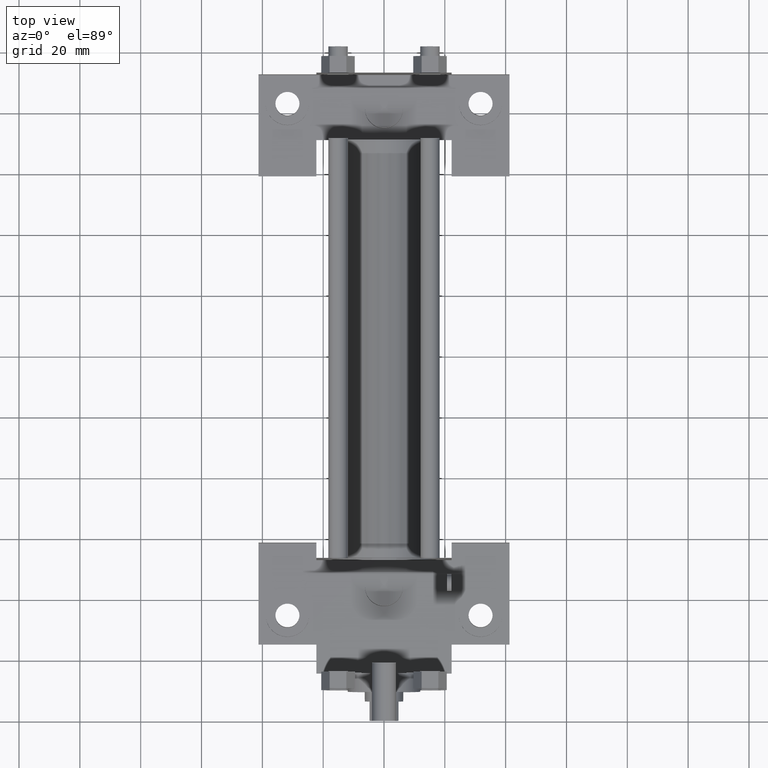
[diagram: clean part render]
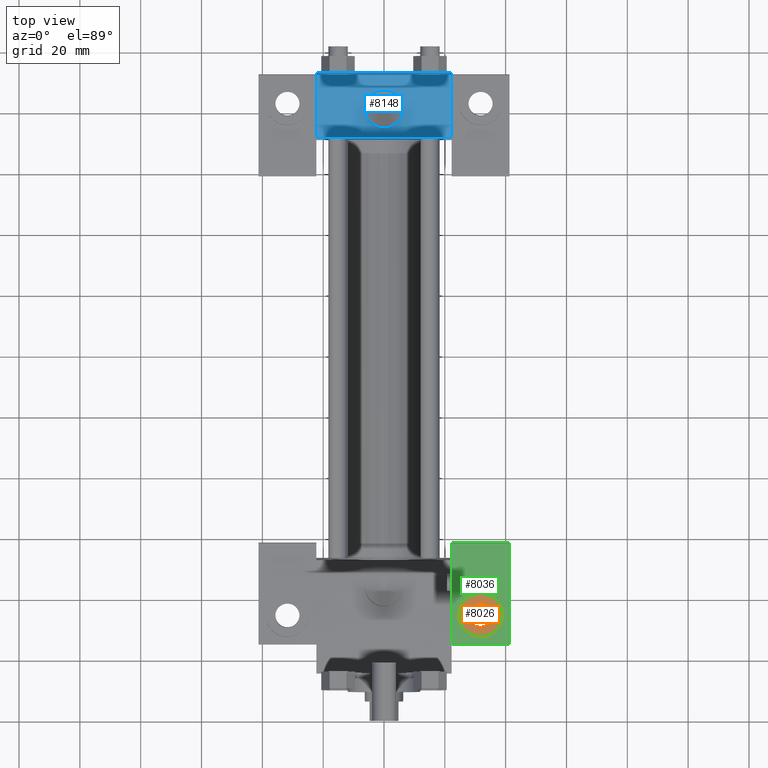
[diagram: same view with three faces highlighted in distinct colors, each labeled with its STEP entity id]
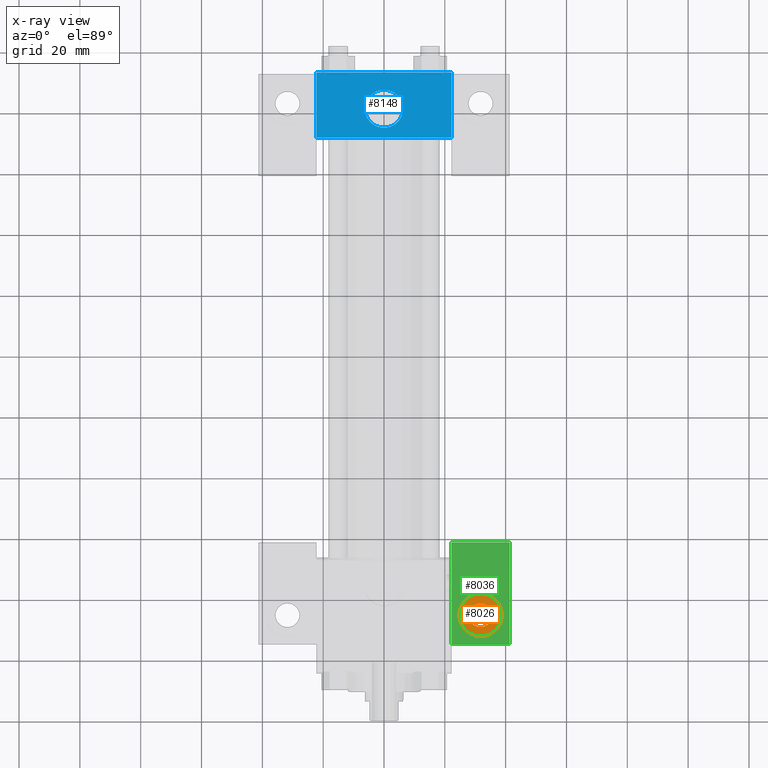
[diagram: x-ray of the same camera — body ghosted, the three highlighted faces saturated]
A machine part, top view with three faces highlighted in distinct colors.
The next image is the same camera in x-ray (body ghosted, the three faces saturated) — at least one of them is partly hidden behind the body in this view.
Their STEP definitions:

[orange] entity #8026 — the highlighted planar face has unit normal (0, 0, -1).
#1408=EDGE_CURVE('',#1414,#1414,#1409,.T.);
#1409=CIRCLE('',#1410,7.143750000E+000);
#1410=AXIS2_PLACEMENT_3D('',#1411,#1412,#1413);
#1411=CARTESIAN_POINT('',(3.175000000E+001,3.492500000E+001,-1.270000000E+001));
#1412=DIRECTION('',(0.0E+000,0.0E+000,1.0E+000));
#1413=DIRECTION('',(0.0E+000,-1.0E+000,0.0E+000));
#1414=VERTEX_POINT('',#1415);
#1415=CARTESIAN_POINT('',(3.175000000E+001,2.778125000E+001,-1.270000000E+001));
#1430=FACE_OUTER_BOUND('',#1432,.T.);
#1431=FACE_BOUND('',#1433,.T.);
#1432=EDGE_LOOP('',(#1434));
#1433=EDGE_LOOP('',(#1435));
#1434=ORIENTED_EDGE('',*,*,#1408,.T.);
#1435=ORIENTED_EDGE('',*,*,#1436,.F.);
#1436=EDGE_CURVE('',#1442,#1442,#1437,.F.);
#1437=CIRCLE('',#1438,3.968750000E+000);
#1438=AXIS2_PLACEMENT_3D('',#1439,#1440,#1441);
#1439=CARTESIAN_POINT('',(3.175000000E+001,3.492500000E+001,-1.270000000E+001));
#1440=DIRECTION('',(0.0E+000,0.0E+000,-1.0E+000));
#1441=DIRECTION('',(-1.0E+000,0.0E+000,0.0E+000));
#1442=VERTEX_POINT('',#1443);
#1443=CARTESIAN_POINT('',(2.778125000E+001,3.492500000E+001,-1.270000000E+001));
#1444=PLANE('',#1445);
#1445=AXIS2_PLACEMENT_3D('',#1446,#1447,#1448);
#1446=CARTESIAN_POINT('',(3.175000000E+001,3.492500000E+001,-1.270000000E+001));
#1447=DIRECTION('',(0.0E+000,0.0E+000,-1.0E+000));
#1448=DIRECTION('',(-1.0E+000,0.0E+000,0.0E+000));
#8026=ADVANCED_FACE('',(#1430,#1431),#1444,.F.);

[blue] entity #8148 — the highlighted planar face has unit normal (0, 0, 1).
#5134=EDGE_CURVE('',#5140,#5140,#5135,.T.);
#5135=CIRCLE('',#5136,6.243320000E+000);
#5136=AXIS2_PLACEMENT_3D('',#5137,#5138,#5139);
#5137=CARTESIAN_POINT('',(0.000000000E+000,2.008187500E+002,2.222500000E+001));
#5138=DIRECTION('',(0.0E+000,0.0E+000,-1.0E+000));
#5139=DIRECTION('',(-1.0E+000,0.0E+000,0.0E+000));
#5140=VERTEX_POINT('',#5141);
#5141=CARTESIAN_POINT('',(-6.243320000E+000,2.008187500E+002,2.222500000E+001));
#5606=VERTEX_POINT('',#5607);
#5607=CARTESIAN_POINT('',(-2.222500000E+001,2.127250000E+002,2.222500000E+001));
#5608=EDGE_CURVE('',#5613,#5606,#5609,.T.);
#5609=LINE('',#5610,#5611);
#5610=CARTESIAN_POINT('',(2.222500000E+001,2.127250000E+002,2.222500000E+001));
#5611=VECTOR('',#5612,1.0E+000);
#5612=DIRECTION('',(-1.0E+000,0.0E+000,0.0E+000));
#5613=VERTEX_POINT('',#5614);
#5614=CARTESIAN_POINT('',(2.222500000E+001,2.127250000E+002,2.222500000E+001));
#5625=FACE_OUTER_BOUND('',#5627,.T.);
#5626=FACE_BOUND('',#5628,.T.);
#5627=EDGE_LOOP('',(#5629));
#5628=EDGE_LOOP('',(#5630,#5631,#5632,#5633));
#5629=ORIENTED_EDGE('',*,*,#5134,.T.);
#5630=ORIENTED_EDGE('',*,*,#5634,.T.);
#5631=ORIENTED_EDGE('',*,*,#5641,.F.);
#5632=ORIENTED_EDGE('',*,*,#5648,.F.);
#5633=ORIENTED_EDGE('',*,*,#5608,.T.);
#5634=EDGE_CURVE('',#5606,#5639,#5635,.T.);
#5635=LINE('',#5636,#5637);
#5636=CARTESIAN_POINT('',(-2.222500000E+001,2.127250000E+002,2.222500000E+001));
#5637=VECTOR('',#5638,1.0E+000);
#5638=DIRECTION('',(0.0E+000,-1.0E+000,0.0E+000));
#5639=VERTEX_POINT('',#5640);
#5640=CARTESIAN_POINT('',(-2.222500000E+001,1.912937500E+002,2.222500000E+001));
#5641=EDGE_CURVE('',#5646,#5639,#5642,.T.);
#5642=LINE('',#5643,#5644);
#5643=CARTESIAN_POINT('',(2.222500000E+001,1.912937500E+002,2.222500000E+001));
#5644=VECTOR('',#5645,1.0E+000);
#5645=DIRECTION('',(-1.0E+000,0.0E+000,0.0E+000));
#5646=VERTEX_POINT('',#5647);
#5647=CARTESIAN_POINT('',(2.222500000E+001,1.912937500E+002,2.222500000E+001));
#5648=EDGE_CURVE('',#5613,#5646,#5649,.T.);
#5649=LINE('',#5650,#5651);
#5650=CARTESIAN_POINT('',(2.222500000E+001,2.127250000E+002,2.222500000E+001));
#5651=VECTOR('',#5652,1.0E+000);
#5652=DIRECTION('',(0.0E+000,-1.0E+000,0.0E+000));
#5653=PLANE('',#5654);
#5654=AXIS2_PLACEMENT_3D('',#5655,#5656,#5657);
#5655=CARTESIAN_POINT('',(2.222500000E+001,2.127250000E+002,2.222500000E+001));
#5656=DIRECTION('',(0.0E+000,0.0E+000,1.0E+000));
#5657=DIRECTION('',(1.0E+000,0.0E+000,0.0E+000));
#8148=ADVANCED_FACE('',(#5625,#5626),#5653,.T.);

[green] entity #8036 — the highlighted planar face has unit normal (0, 0, 1).
#1417=EDGE_CURVE('',#1423,#1423,#1418,.T.);
#1418=CIRCLE('',#1419,7.143750000E+000);
#1419=AXIS2_PLACEMENT_3D('',#1420,#1421,#1422);
#1420=CARTESIAN_POINT('',(3.175000000E+001,3.492500000E+001,-9.525000000E+000));
#1421=DIRECTION('',(0.0E+000,0.0E+000,-1.0E+000));
#1422=DIRECTION('',(0.0E+000,-1.0E+000,0.0E+000));
#1423=VERTEX_POINT('',#1424);
#1424=CARTESIAN_POINT('',(3.175000000E+001,2.778125000E+001,-9.525000000E+000));
#1678=FACE_OUTER_BOUND('',#1680,.T.);
#1679=FACE_BOUND('',#1681,.T.);
#1680=EDGE_LOOP('',(#1682));
#1681=EDGE_LOOP('',(#1683,#1684,#1685,#1686,#1687));
#1682=ORIENTED_EDGE('',*,*,#1417,.T.);
#1683=ORIENTED_EDGE('',*,*,#1688,.T.);
#1684=ORIENTED_EDGE('',*,*,#1697,.T.);
#1685=ORIENTED_EDGE('',*,*,#1704,.T.);
#1686=ORIENTED_EDGE('',*,*,#1711,.T.);
#1687=ORIENTED_EDGE('',*,*,#1714,.T.);
#1688=EDGE_CURVE('',#1693,#1694,#1689,.T.);
#1689=LINE('',#1690,#1691);
#1690=CARTESIAN_POINT('',(4.127500000E+001,2.540000000E+001,-9.525000000E+000));
#1691=VECTOR('',#1692,1.0E+000);
#1692=DIRECTION('',(0.0E+000,1.0E+000,0.0E+000));
#1693=VERTEX_POINT('',#1695);
#1694=VERTEX_POINT('',#1696);
#1695=CARTESIAN_POINT('',(4.127500000E+001,2.540000000E+001,-9.525000000E+000));
#1696=CARTESIAN_POINT('',(4.127500000E+001,5.873750000E+001,-9.525000000E+000));
#1697=EDGE_CURVE('',#1694,#1702,#1698,.T.);
#1698=LINE('',#1699,#1700);
#1699=CARTESIAN_POINT('',(4.127500000E+001,5.873750000E+001,-9.525000000E+000));
#1700=VECTOR('',#1701,1.0E+000);
#1701=DIRECTION('',(-1.0E+000,0.0E+000,0.0E+000));
#1702=VERTEX_POINT('',#1703);
#1703=CARTESIAN_POINT('',(2.222500000E+001,5.873750000E+001,-9.525000000E+000));
#1704=EDGE_CURVE('',#1702,#1709,#1705,.T.);
#1705=LINE('',#1706,#1707);
#1706=CARTESIAN_POINT('',(2.222500000E+001,5.873750000E+001,-9.525000000E+000));
#1707=VECTOR('',#1708,1.0E+000);
#1708=DIRECTION('',(0.0E+000,-1.0E+000,0.0E+000));
#1709=VERTEX_POINT('',#1710);
#1710=CARTESIAN_POINT('',(2.222500000E+001,5.318125000E+001,-9.525000000E+000));
#1711=EDGE_CURVE('',#1709,#1712,#1705,.T.);
#1712=VERTEX_POINT('',#1713);
#1713=CARTESIAN_POINT('',(2.222500000E+001,2.540000000E+001,-9.525000000E+000));
#1714=EDGE_CURVE('',#1712,#1693,#1715,.T.);
#1715=LINE('',#1716,#1717);
#1716=CARTESIAN_POINT('',(2.222500000E+001,2.540000000E+001,-9.525000000E+000));
#1717=VECTOR('',#1718,1.0E+000);
#1718=DIRECTION('',(1.0E+000,0.0E+000,0.0E+000));
#1719=PLANE('',#1720);
#1720=AXIS2_PLACEMENT_3D('',#1721,#1722,#1723);
#1721=CARTESIAN_POINT('',(4.127500000E+001,5.873750000E+001,-9.525000000E+000));
#1722=DIRECTION('',(0.0E+000,0.0E+000,1.0E+000));
#1723=DIRECTION('',(1.0E+000,0.0E+000,0.0E+000));
#8036=ADVANCED_FACE('',(#1678,#1679),#1719,.T.);